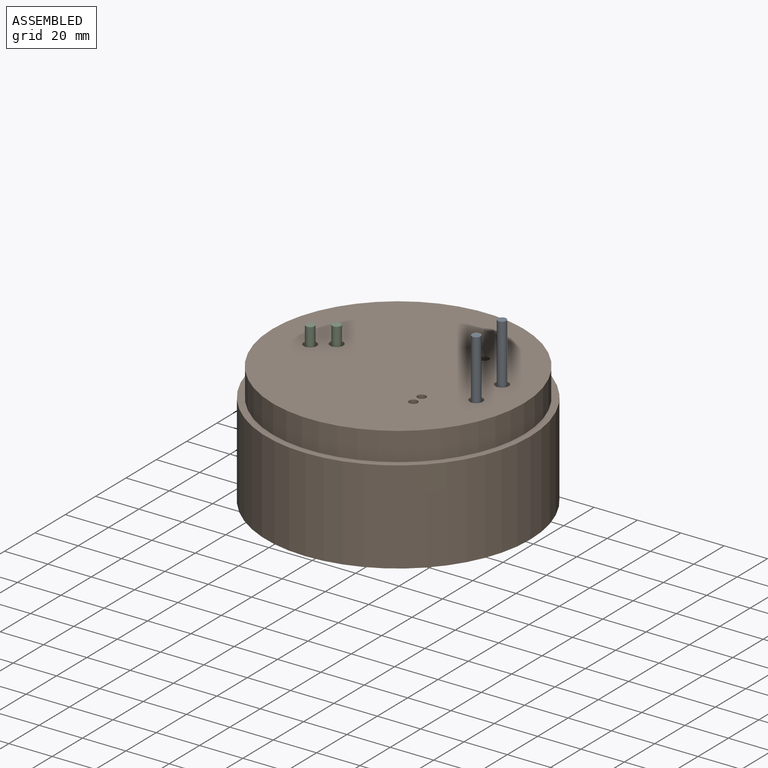
[diagram: assembled view]
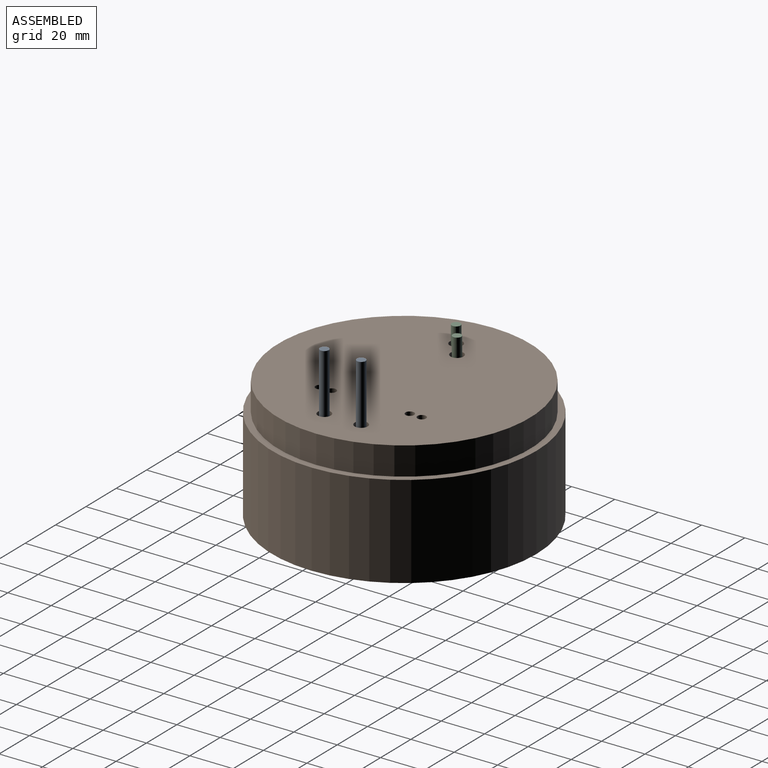
[diagram: assembled view, second angle]
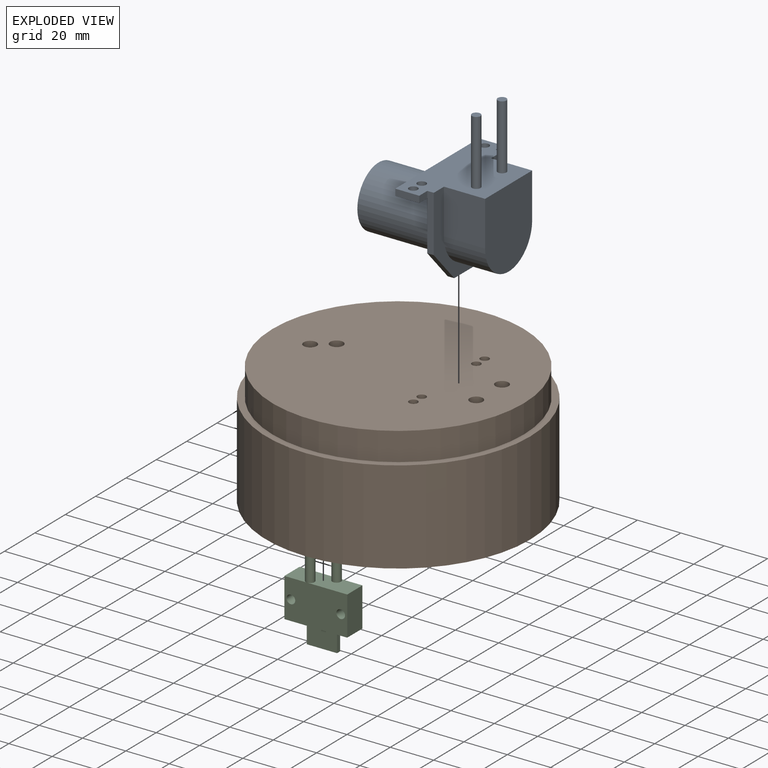
[diagram: exploded view]
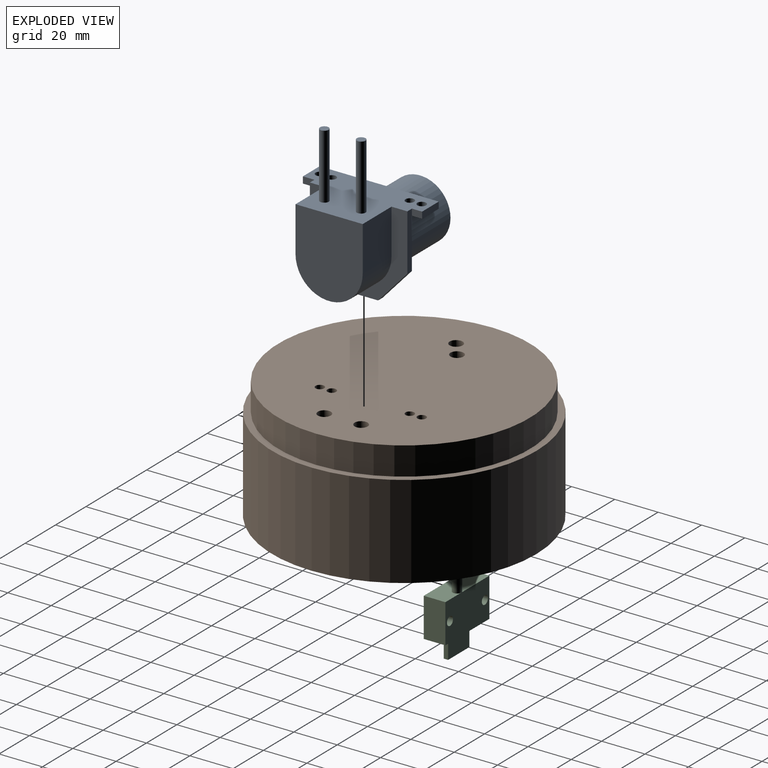
[diagram: exploded view, second angle]
ASSEMBLY  parts=3 mates=2
PART A: 28 faces, bbox 55x70.8x60 mm
  f0: plane 45x37.76mm, normal (0,0,-1), area 884.1mm2, adj f1,f3,f5,f6,f7,f8,f12
  f1: cylinder r=14mm len=38mm, axis (0,0,-1), area 3342.7mm2, adj f0,f2
  f2: plane 28x28mm, normal (0,0,-1), area 615.8mm2, adj f1
  f3: plane 26x3mm, normal (-1,0,0), area 78mm2, adj f0,f4,f8,f9,f10
  f4: plane 55x33mm, normal (0,-1,0), area 1253.6mm2, adj f3,f5,f9,f10,f11,f13,f14,f15
  f5: plane 26x3mm, normal (1,0,0), area 78mm2, adj f0,f4,f6,f9,f15
  f6: plane 14.76x13.5mm, normal (0.74,0.68,0), area 60mm2, adj f0,f5,f7,f9
  f7: plane 18x3mm, normal (0,1,0), area 54mm2, adj f0,f6,f8,f9
  f8: plane 14.76x13.5mm, normal (-0.74,0.68,0), area 60mm2, adj f0,f3,f7,f9
  f9: plane 45x40.76mm, normal (0,0,1), area 614mm2, adj f3,f4,f5,f6,f7,f8,f20,f21
  f10: plane 4.7x3mm, normal (0,0,1), area 14.1mm2, adj f3,f4,f11,f12
  f11: plane 11x3mm, normal (-1,0,0), area 33mm2, adj f4,f10,f12,f14
  f12: plane 55x11mm, normal (0,1,0), area 554.7mm2, adj f0,f10,f11,f13,f14,f15,f16,f17
  f13: plane 11x3mm, normal (1,0,0), area 33mm2, adj f4,f12,f14,f15
  f14: plane 55x3mm, normal (0,0,-1), area 165mm2, adj f4,f11,f12,f13
  f15: plane 5.3x3mm, normal (0,0,1), area 15.9mm2, adj f4,f5,f12,f13
  f16: cylinder r=2mm len=4mm, axis (0,-1,0), area 37.7mm2, adj f4,f12
  f17: cylinder r=2mm len=4mm, axis (0,-1,0), area 37.7mm2, adj f4,f12
  f18: cylinder r=2mm len=4mm, axis (0,-1,0), area 37.7mm2, adj f4,f12
  f19: cylinder r=2mm len=4mm, axis (0,-1,0), area 37.7mm2, adj f4,f12
  f20: cylinder r=15.5mm len=31mm, axis (0,0,-1), area 925.2mm2, adj f9,f21,f22,f23
  f21: plane 20.76x19mm, normal (-1,0,0), area 394.4mm2, adj f4,f9,f20,f23
  f22: plane 20.76x19mm, normal (1,0,0), area 394.4mm2, adj f4,f9,f20,f23
  f23: plane 36.26x31mm, normal (0,0,1), area 1020.8mm2, adj f4,f20,f21,f22
  f24: cylinder r=2mm len=30mm, axis (0,1,0), area 377mm2, adj f4,f25
  f25: plane 4x4mm, normal (0,-1,0), area 12.6mm2, adj f24
  f26: cylinder r=2mm len=30mm, axis (0,1,0), area 377mm2, adj f4,f27
  f27: plane 4x4mm, normal (0,-1,0), area 12.6mm2, adj f26
PART B: 25 faces, bbox 122x122x56 mm
  f0: plane 116x116mm, normal (0,0,-1), area 1065mm2, adj f3,f23
  f1: cylinder r=58mm len=116mm, axis (0,0,-1), area 4737.5mm2, adj f2,f22
  f2: plane 116x116mm, normal (0,0,1), area 10405mm2, adj f1,f5,f6,f7,f8,f9,f10,f16
  f3: cylinder r=55mm len=110mm, axis (0,0,1), area 4492.5mm2, adj f0,f4
  f4: plane 110x110mm, normal (0,0,-1), area 9256.1mm2, adj f3,f5,f6,f7,f8,f9,f10,f11
  f5: cylinder r=3mm len=6mm, axis (0,0,-1), area 56.5mm2, adj f2,f4
  f6: cylinder r=2mm len=4mm, axis (0,0,-1), area 37.7mm2, adj f2,f4
  f7: cylinder r=2mm len=4mm, axis (0,0,-1), area 37.7mm2, adj f2,f4
  f8: cylinder r=2mm len=4mm, axis (0,0,-1), area 37.7mm2, adj f2,f4
  f9: cylinder r=3mm len=6mm, axis (0,0,-1), area 56.5mm2, adj f2,f4
  f10: cylinder r=2mm len=4mm, axis (0,0,-1), area 37.7mm2, adj f2,f4
  f11: plane 18x3mm, normal (1,0,0), area 54mm2, adj f4,f12,f14,f15
  f12: plane 29x18mm, normal (0,-1,0), area 496.9mm2, adj f4,f11,f13,f15,f18,f19,f20
  f13: plane 18x3mm, normal (-1,0,0), area 54mm2, adj f4,f12,f14,f15
  f14: plane 29x18mm, normal (0,1,0), area 496.9mm2, adj f4,f11,f13,f15,f19,f20
  f15: plane 29x3mm, normal (0,0,-1), area 87mm2, adj f11,f12,f13,f14
  f16: cylinder r=3mm len=6mm, axis (0,0,1), area 56.5mm2, adj f2,f4
  f17: cylinder r=3mm len=6mm, axis (0,0,1), area 56.5mm2, adj f2,f4,f18
  f18: plane 4.47x1mm, normal (0,0,1), area 3.1mm2, adj f12,f17
  f19: cylinder r=2mm len=4mm, axis (0,1,0), area 37.7mm2, adj f12,f14
  f20: cylinder r=2mm len=4mm, axis (0,1,0), area 37.7mm2, adj f12,f14
  f21: cylinder r=61mm len=122mm, axis (0,0,1), area 16480.8mm2, adj f22,f24
  f22: plane 122x122mm, normal (0,0,1), area 1121.5mm2, adj f1,f21
  f23: cylinder r=58mm len=116mm, axis (0,0,1), area 14577mm2, adj f0,f24
  f24: plane 122x122mm, normal (0,0,-1), area 1121.5mm2, adj f21,f23
PART C: 17 faces, bbox 29x10x39 mm
  f0: plane 18x10mm, normal (-1,0,0), area 180mm2, adj f1,f4,f6,f7
  f1: plane 29x10mm, normal (0,0,-1), area 262mm2, adj f0,f2,f6,f7,f12,f13,f14,f15
  f2: plane 18x10mm, normal (1,0,0), area 180mm2, adj f1,f4,f6,f7
  f3: cylinder r=2mm len=10mm, axis (0,1,0), area 125.7mm2, adj f6,f7
  f4: plane 29x10mm, normal (0,0,1), area 264.9mm2, adj f0,f2,f6,f7,f8,f10
  f5: cylinder r=2mm len=10mm, axis (0,1,0), area 125.7mm2, adj f6,f7
  f6: plane 29x18mm, normal (0,-1,0), area 496.9mm2, adj f0,f1,f2,f3,f4,f5
  f7: plane 29x18mm, normal (0,1,0), area 496.9mm2, adj f0,f1,f2,f3,f4,f5
  f8: cylinder r=2mm len=11mm, axis (0,0,-1), area 138.2mm2, adj f4,f9
  f9: plane 4x4mm, normal (0,0,1), area 12.6mm2, adj f8
  f10: cylinder r=2mm len=11mm, axis (0,0,-1), area 138.2mm2, adj f4,f11
  f11: plane 4x4mm, normal (0,0,1), area 12.6mm2, adj f10
  f12: plane 14x10mm, normal (0,-1,0), area 140mm2, adj f1,f13,f15,f16
  f13: plane 10x2mm, normal (-1,0,0), area 20mm2, adj f1,f12,f14,f16
  f14: plane 14x10mm, normal (0,1,0), area 140mm2, adj f1,f13,f15,f16
  f15: plane 10x2mm, normal (1,0,0), area 20mm2, adj f1,f12,f14,f16
  f16: plane 14x2mm, normal (0,0,-1), area 28mm2, adj f12,f13,f14,f15
PLACE A rot(axis=(-0.58,0.58,-0.58),120deg) t=(-3.21,14.03,36.3)mm
PLACE B t=(6.3,13.34,57.06)mm
PLACE C t=(-28.2,18.34,48.06)mm
MATE fastened C.f7 <-> B.f12  axis (0,1,0) through (-28.2,18.34,48.06)mm
MATE planar A.f4 <-> B.f4  axis (0,0,1) through (38.13,14.06,57.06)mm
